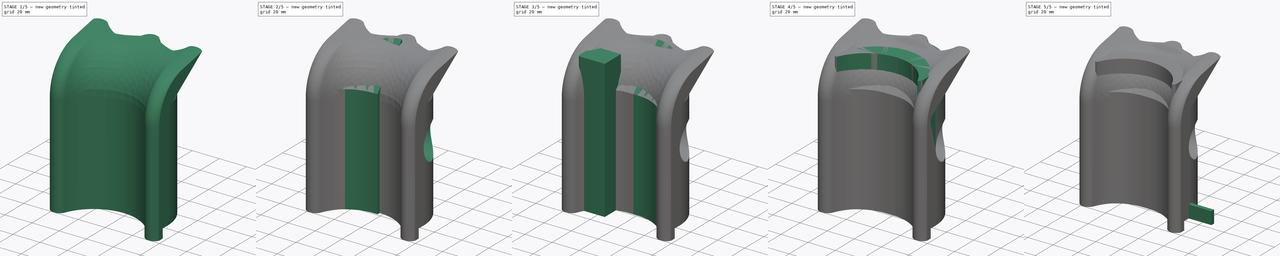
[diagram: build sequence overview — one tinted view per stage of 5, left to right]
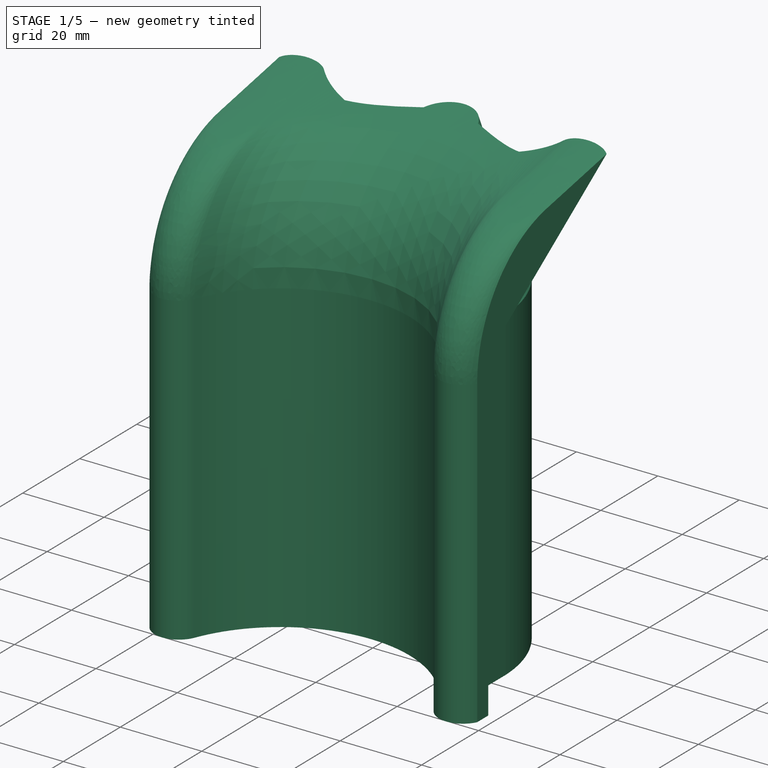
[diagram: stage 1 of 5 — iso view after this stage's code; geometry added in this stage tinted green]
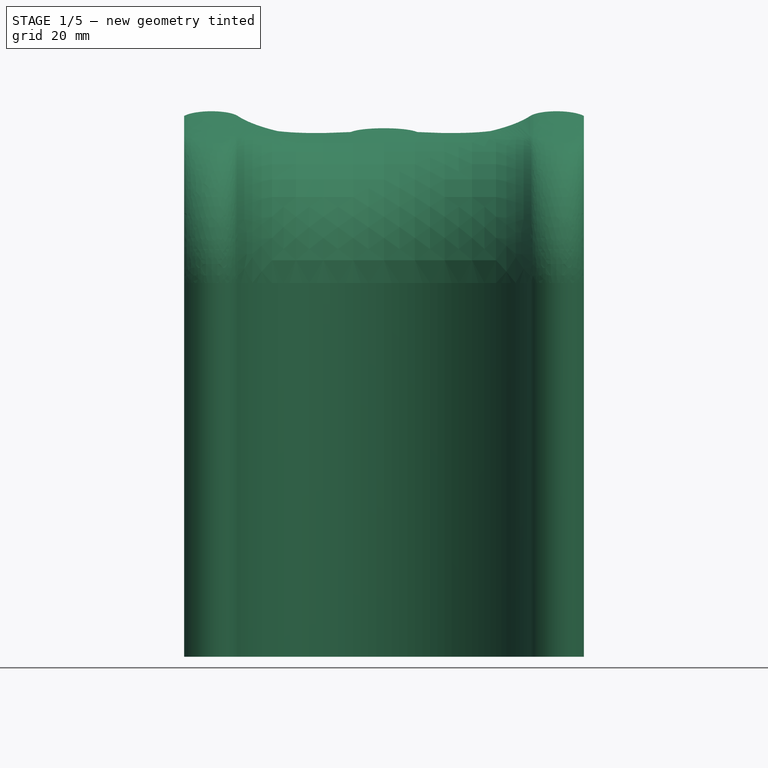
[diagram: stage 1 of 5 — front view after this stage's code; geometry added in this stage tinted green]
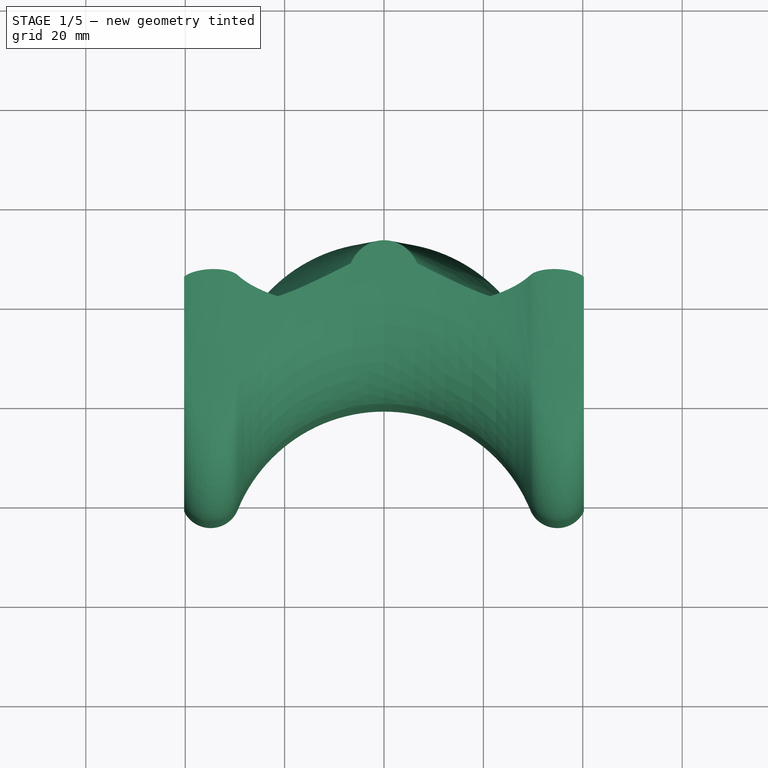
[diagram: stage 1 of 5 — top view after this stage's code; geometry added in this stage tinted green]
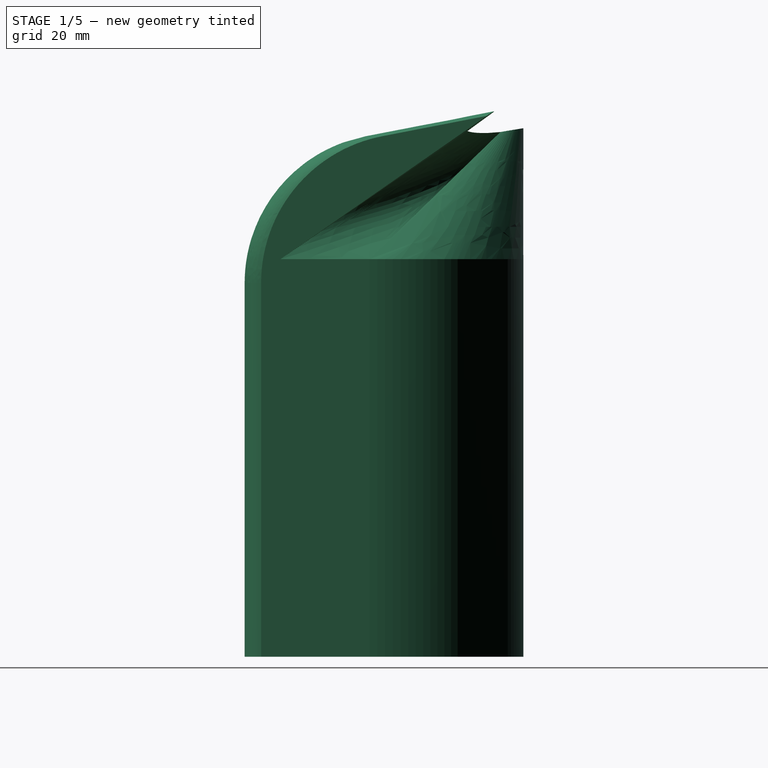
[diagram: stage 1 of 5 — right view after this stage's code; geometry added in this stage tinted green]
FCSTD DOCUMENT  (FreeCAD 0.19R)
Label: invert_table_stuff
License: All rights reserved
LicenseURL: http://en.wikipedia.org/wiki/All_rights_reserved
objects: Sketcher::SketchObject×11, PartDesign::Body×5, Part::FeaturePython×4, Part::Cylinder×3, Part::MultiFuse×3, Part::Plane×3, Part::Cut×3, App::Part×3, Part::Box×2, Part::Feature×2, Part::Mirroring×2, PartDesign::Pad×2, Part::Compound×2, Part::Fillet×1, App::DocumentObjectGroup×1, Part::Part2DObjectPython×1, Part::Loft×1, Part::Refine×1, PartDesign::AdditivePipe×1, PartDesign::AdditiveLoft×1, +1 more types
note: 53 computed .brp shape members not serialized (recipe doc carries the construction recipe); baked Part::Feature solids carry a one-line shape summary decoded from their .brp

FEATURE [Part::Refine] Cut003001  label="invert table foot bed cut001"
  Source = -> Cut003
FEATURE [Part::Feature] Cut003001001  label="invert table foot bed cut002"
  shape: bbox 74.7 x 53.95 x 106.9 mm, 54 faces, 4 solids (baked)
FEATURE [Sketcher::SketchObject] Sketch009
  FullyConstrained = false
  MapMode = 5
  Support = -> [XY_Plane006]
  sketch-geometry (6):
    g0: ArcOfCircle CenterX=0 CenterY=-32.4132 CenterZ=0 NormalX=0 NormalY=0 NormalZ=1 AngleXU=0 Radius=31.7684 StartAngle=0.387599 EndAngle=2.75399
    g1: ArcOfCircle CenterX=-34.8946 CenterY=-18.1674 CenterZ=0 NormalX=0 NormalY=0 NormalZ=1 AngleXU=0 Radius=5.92214 StartAngle=3.59764 EndAngle=5.89559
    g2: ArcOfCircle CenterX=34.8946 CenterY=-18.1674 CenterZ=0 NormalX=0 NormalY=0 NormalZ=1 AngleXU=0 Radius=5.92214 StartAngle=3.52919 EndAngle=5.82714
    g3: LineSegment StartX=-40.2115 StartY=-20.7756 StartZ=0 EndX=-40.2115 EndY=33.2275 EndZ=0
    g4: LineSegment StartX=40.2115 StartY=-20.7756 StartZ=0 EndX=40.2115 EndY=33.2275 EndZ=0
    g5: LineSegment StartX=40.2115 StartY=33.2275 StartZ=0 EndX=-40.2115 EndY=33.2275 EndZ=0
  constraints (12):
    c: PointOnObject(g0,g-2)
    c: DistanceY(g0,g0) = 0
    c: Tangent(g1,g0) = 1.5708
    c: Tangent(g2,g0) = 1.5708
    c: Coincident(g3,g1)
    c: Vertical(g3)
    c: Coincident(g4,g2)
    c: Vertical(g4)
    c: Coincident(g5,g4)
    c: Coincident(g5,g3)
    c: Horizontal(g5)
    c: Symmetric(g1,g2,g-2)
FEATURE [Sketcher::SketchObject] Sketch010
  ExternalGeometry = -> [Sketch009]
  FullyConstrained = false
  MapMode = 5
  Placement = pos=(0,0,0) rot=(0.57735,0.57735,0.57735;2.0944rad)
  Support = -> [YZ_Plane005,YZ_Plane006]
  sketch-geometry (4):
    g0: LineSegment StartX=-20.4058 StartY=2.5e-15 StartZ=0 EndX=-20.4058 EndY=75.1995 EndZ=0
    g1: LineSegment StartX=3.93831 StartY=104.736 StartZ=0 EndX=31 EndY=110 EndZ=0
    g2: ArcOfCircle CenterX=9.68399 CenterY=75.1995 CenterZ=0 NormalX=0 NormalY=0 NormalZ=1 AngleXU=0 Radius=30.0898 StartAngle=1.76293 EndAngle=3.14159
    g3: GeomPoint X=-20.4058 Y=100 Z=0
  constraints (9):
    c: DistanceY(g3,g1) = 10
    c: DistanceY(g0,g3) = 100
    c: PointOnObject(g3,g0)
    c: PointOnObject(g3,g1)
    c: Tangent(g0,g2) = 1.5708
    c: Tangent(g1,g2) = 1.5708
    c: Vertical(g0)
    c: Coincident(g0,g-3)
    c: DistanceX(g-1,g1) = 31
FEATURE [Sketcher::SketchObject] Sketch011
  FullyConstrained = false
  MapMode = 5
  Support = -> [XY_Plane007]
  sketch-geometry (8):
    g0: ArcOfCircle CenterX=0 CenterY=0 CenterZ=0 NormalX=0 NormalY=0 NormalZ=1 AngleXU=0 Radius=32 StartAngle=0.0312551 EndAngle=3.11034
    g1: LineSegment StartX=-31.9844 StartY=1 StartZ=0 EndX=-31.9844 EndY=-16.894 EndZ=0
    g2: LineSegment StartX=31.9844 StartY=1 StartZ=0 EndX=31.9844 EndY=-16.894 EndZ=0
    g3: LineSegment StartX=-31.9844 StartY=-16.894 StartZ=0 EndX=-44.5187 EndY=-16.894 EndZ=0
    g4: LineSegment StartX=-44.5187 StartY=-16.894 StartZ=0 EndX=-44.5187 EndY=-34.0727 EndZ=0
    g5: LineSegment StartX=-44.5187 StartY=-34.0727 StartZ=0 EndX=44.5187 EndY=-34.0727 EndZ=0
    g6: LineSegment StartX=44.5187 StartY=-34.0727 StartZ=0 EndX=44.5187 EndY=-16.894 EndZ=0
    g7: LineSegment StartX=31.9844 StartY=-16.894 StartZ=0 EndX=44.5187 EndY=-16.894 EndZ=0
  constraints (21):
    c: DistanceY(g0,g0) = 0
    c: Radius(g0) = 32
    c: DistanceY(g-1,g0) = 1
    c: Coincident(g0,g-1)
    c: Coincident(g1,g0)
    c: Vertical(g1)
    c: Coincident(g2,g0)
    c: Vertical(g2)
    c: Equal(g2,g1)
    c: Coincident(g3,g1)
    c: Horizontal(g3)
    c: Coincident(g4,g3)
    c: Vertical(g4)
    c: Coincident(g5,g4)
    c: Horizontal(g5)
    c: Coincident(g6,g5)
    c: Vertical(g6)
    c: Coincident(g7,g2)
    c: Coincident(g7,g6)
    c: Horizontal(g7)
    c: Equal(g7,g3)
FEATURE [PartDesign::Pad] Pad001
  Direction = (1,1,1)
  Length = 80
  Length2 = 100
  Profile = -> Sketch011
  Type = 0
FEATURE [PartDesign::Body] Body003
  Group = -> [Sketch011,Pad001]
  Origin = -> Origin007
  Tip = -> Pad001
FEATURE [PartDesign::AdditivePipe] AdditivePipe
  AuxilleryCurvelinear = true
  AuxillerySpineTangent = false
  Binormal = (0,0,0)
  Mode = 1
  Profile = -> Sketch009
  Spine = -> Sketch010
  SpineTangent = false
  Transformation = 0
  Transition = 0
FEATURE [PartDesign::Body] Body002
  Group = -> [Sketch009,Sketch010,AdditivePipe]
  Origin = -> Origin006
  Tip = -> AdditivePipe
FEATURE [Part::Plane] Plane002
  AttacherType = Attacher::AttachEngine3D
  Length = 100
  Placement = pos=(-50,-50,80) rot=(0,0,1;0rad)
  Width = 100
  expr: .Placement.Base.y = -Width / 2
  expr: .Placement.Base.x = -Length / 2
FEATURE [Sketcher::SketchObject] Sketch013
  AttachmentOffset = pos=(0,0,80) rot=(0,0,1;0rad)
  FullyConstrained = false
  MapMode = 5
  Placement = pos=(0,0,80) rot=(0,0,1;0rad)
  Support = -> [XY_Plane007]
  sketch-geometry (8):
    g0: ArcOfCircle CenterX=0 CenterY=0 CenterZ=0 NormalX=0 NormalY=0 NormalZ=1 AngleXU=0 Radius=32 StartAngle=0.0312551 EndAngle=3.11034
    g1: LineSegment StartX=-31.9844 StartY=1 StartZ=0 EndX=-31.9844 EndY=-16.894 EndZ=0
    g2: LineSegment StartX=31.9844 StartY=1 StartZ=0 EndX=31.9844 EndY=-16.894 EndZ=0
    g3: LineSegment StartX=-31.9844 StartY=-16.894 StartZ=0 EndX=-44.5187 EndY=-16.894 EndZ=0
    g4: LineSegment StartX=-44.5187 StartY=-16.894 StartZ=0 EndX=-44.5187 EndY=-34.0727 EndZ=0
    g5: LineSegment StartX=-44.5187 StartY=-34.0727 StartZ=0 EndX=44.5187 EndY=-34.0727 EndZ=0
    g6: LineSegment StartX=44.5187 StartY=-34.0727 StartZ=0 EndX=44.5187 EndY=-16.894 EndZ=0
    g7: LineSegment StartX=31.9844 StartY=-16.894 StartZ=0 EndX=44.5187 EndY=-16.894 EndZ=0
  constraints (21):
    c: DistanceY(g0,g0) = 0
    c: Radius(g0) = 32
    c: DistanceY(g-1,g0) = 1
    c: Coincident(g0,g-1)
    c: Coincident(g1,g0)
    c: Vertical(g1)
    c: Coincident(g2,g0)
    c: Vertical(g2)
    c: Equal(g2,g1)
    c: Coincident(g3,g1)
    c: Horizontal(g3)
    c: Coincident(g4,g3)
    c: Vertical(g4)
    c: Coincident(g5,g4)
    c: Horizontal(g5)
    c: Coincident(g6,g5)
    c: Vertical(g6)
    c: Coincident(g7,g2)
    c: Coincident(g7,g6)
    c: Horizontal(g7)
    c: Equal(g7,g3)
FEATURE [Sketcher::SketchObject] Sketch014
  AttachmentOffset = pos=(0,0,110) rot=(0,0,1;0rad)
  FullyConstrained = false
  MapMode = 5
  Placement = pos=(0,0,110) rot=(0,0,1;0rad)
  Support = -> [XY_Plane007]
  sketch-geometry (8):
    g0: ArcOfCircle CenterX=0 CenterY=0 CenterZ=0 NormalX=0 NormalY=0 NormalZ=1 AngleXU=0 Radius=32 StartAngle=1.4984 EndAngle=1.64319
    g1: LineSegment StartX=-2.31458 StartY=31.9162 StartZ=0 EndX=-19.671 EndY=26.9162 EndZ=0
    g2: LineSegment StartX=2.31458 StartY=31.9162 StartZ=0 EndX=19.671 EndY=26.9162 EndZ=0
    g3: LineSegment StartX=-19.671 StartY=26.9162 StartZ=0 EndX=-40.2549 EndY=26.2924 EndZ=0
    g4: LineSegment StartX=-40.2549 StartY=26.2924 StartZ=0 EndX=-41.04 EndY=-7.91569 EndZ=0
    g5: LineSegment StartX=-41.04 StartY=-7.91569 StartZ=0 EndX=41.04 EndY=-7.91569 EndZ=0
    g6: LineSegment StartX=41.04 StartY=-7.91569 StartZ=0 EndX=40.2549 EndY=26.2924 EndZ=0
    g7: LineSegment StartX=19.671 StartY=26.9162 StartZ=0 EndX=40.2549 EndY=26.2924 EndZ=0
  constraints (16):
    c: Radius(g0) = 32
    c: Coincident(g0,g-1)
    c: Coincident(g1,g0)
    c: Coincident(g2,g0)
    c: Equal(g2,g1)
    c: Coincident(g3,g1)
    c: Coincident(g4,g3)
    c: Coincident(g5,g4)
    c: Coincident(g6,g5)
    c: Coincident(g7,g2)
    c: Coincident(g7,g6)
    c: DistanceY(g1,g1) = 5
    c: DistanceX(g4,g-1) = 41.04
    c: Symmetric(g5,g4,g-2)
    c: Symmetric(g3,g6,g-2)
    c: Symmetric(g2,g1,g-2)
FEATURE [PartDesign::AdditiveLoft] AdditiveLoft
  Closed = false
  Profile = -> Sketch013
  Ruled = false
  Sections = -> [Sketch014]
FEATURE [PartDesign::Body] Body004
  Group = -> [Sketch013,Sketch014,AdditiveLoft]
  Origin = -> Origin008
  Tip = -> AdditiveLoft
FEATURE [App::Part] Part002
  Group = -> [Body002,Body003,Body004]
  Origin = -> Origin005
FEATURE [Part::MultiFuse] Fusion004
  Shapes = -> [Body004,Body003]
FEATURE [Part::MultiCommon] Common
  Shapes = -> [Body002,Fusion004]
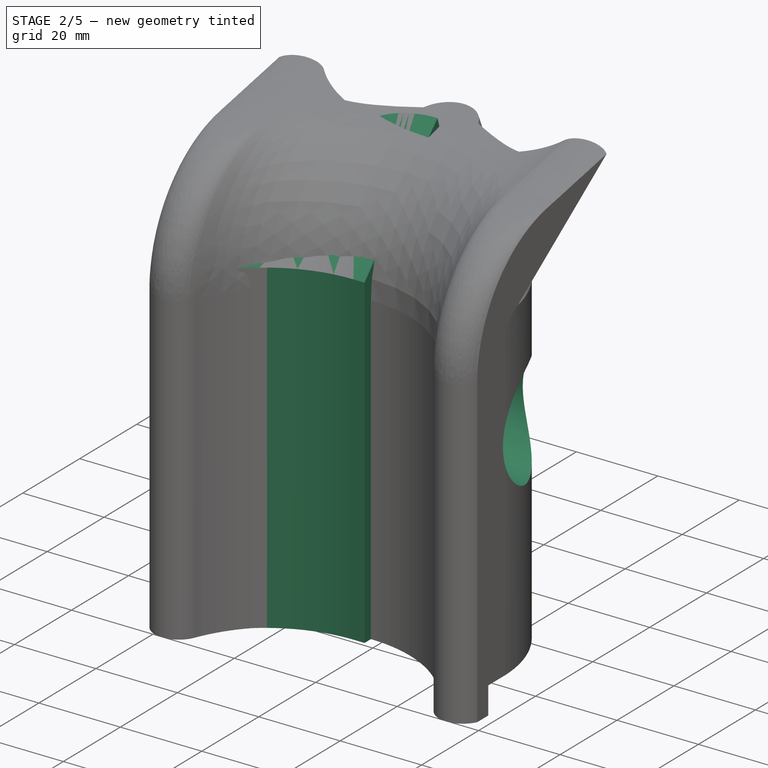
[diagram: stage 2 of 5 — iso view after this stage's code; geometry added in this stage tinted green]
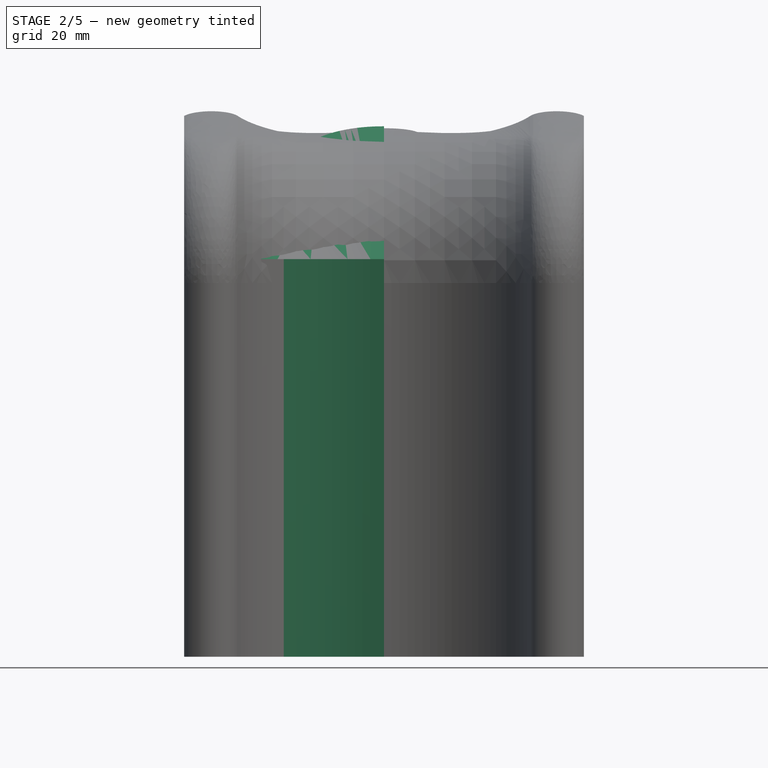
[diagram: stage 2 of 5 — front view after this stage's code; geometry added in this stage tinted green]
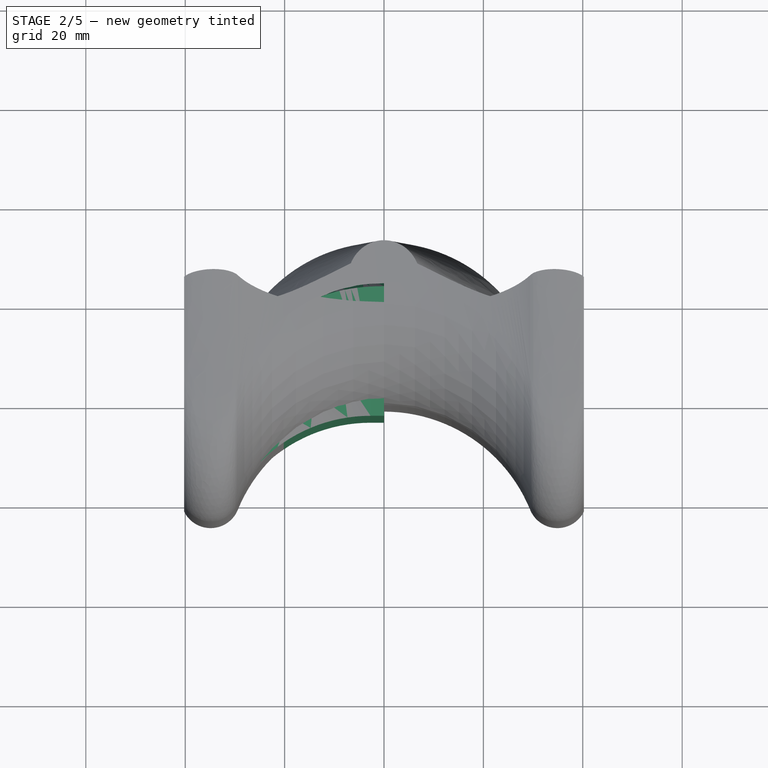
[diagram: stage 2 of 5 — top view after this stage's code; geometry added in this stage tinted green]
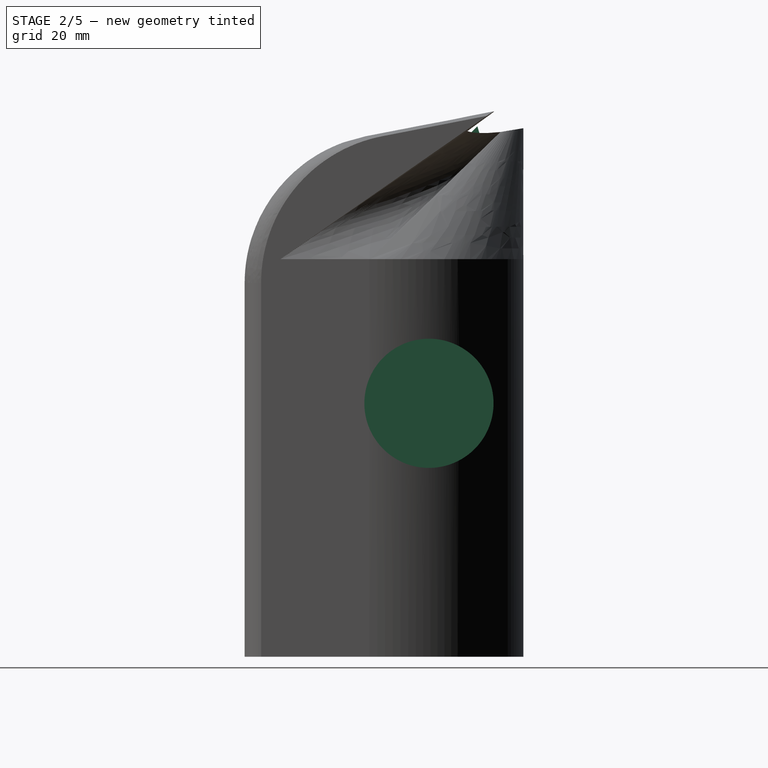
[diagram: stage 2 of 5 — right view after this stage's code; geometry added in this stage tinted green]
FEATURE [Part::Cylinder] Cylinder  label="outer cylinder"
  Angle = 180
  AttacherType = Attacher::AttachEngine3D
  Height = 102
  Radius = 32
FEATURE [Part::Cylinder] Cylinder002  label="hole cylinder"
  Angle = 360
  AttacherType = Attacher::AttachEngine3D
  Height = 64
  Placement = pos=(-32,13,51) rot=(0,1,0;1.5708rad)
  Radius = 13
  expr: Height = <<outer cylinder>>.Radius * 2
  expr: .Placement.Base.x = -Height / 2
  expr: .Placement.Base.z = <<outer cylinder>>.Height / 2
FEATURE [App::DocumentObjectGroup] GrExplode_Slice  label="Exploded Slice"
  Group = -> [Slice_child0,Slice_child1,Slice_child2]
FEATURE [App::Part] Part001  label="invert table bed part"
  Group = -> [Cut]
  Origin = -> Origin002
FEATURE [Sketcher::SketchObject] Sketch003  label="middle sketch"
  AttachmentOffset = pos=(0,0,80) rot=(0,0,1;0rad)
  FullyConstrained = false
  MapMode = 5
  Placement = pos=(0,0,80) rot=(0,0,1;0rad)
  Support = -> [XY_Plane003]
  sketch-geometry (44):
    g0: LineSegment StartX=0 StartY=32 StartZ=0 EndX=0 EndY=0 EndZ=0
    g1-g22: Circle x22 (B-spline internal-alignment scaffolding for g23; pole/knot coordinates omitted)
    g23: BSplineCurve PolesCount=22 KnotsCount=20 Degree=3 IsPeriodic=0
    g24-g43: GeomPoint x20 (B-spline internal-alignment scaffolding for g23; pole/knot coordinates omitted)
  constraints (9):
    c: PointOnObject(g0,g-2)
    c: DistanceY(g-1,g0) = 32
    c: Coincident(g23,g0)
    c: Weight(g1) = 1
    c: Equal(g1, g2-g22) x21
    c: Coincident(g23,g0)
    c: InternalAlignment(g1-g22 -> g23) x22
    c: InternalAlignment(g24-g43 -> g23) x20
    c: Coincident(g0,g-1)
FEATURE [Sketcher::SketchObject] Sketch005  label="central vertical sketch"
  ExternalGeometry = -> [Sketch003,Sketch]
  FullyConstrained = false
  MapMode = 5
  Placement = pos=(0,0,0) rot=(0.57735,0.57735,0.57735;2.0944rad)
  Support = -> [YZ_Plane003]
  sketch-geometry (4):
    g0: LineSegment StartX=32 StartY=109.073 StartZ=0 EndX=32 EndY=80 EndZ=0
    g1: LineSegment StartX=0 StartY=0 StartZ=0 EndX=0.127866 EndY=80.0002 EndZ=0
    g2: LineSegment StartX=32 StartY=80 StartZ=0 EndX=32 EndY=1.42e-14 EndZ=0
    g3: ArcOfCircle CenterX=26.9326 CenterY=82.6215 CenterZ=0 NormalX=0 NormalY=0 NormalZ=1 AngleXU=0 Radius=26.9326 StartAngle=1.38152 EndAngle=3.23907
  constraints (8):
    c: Coincident(g0,g-4)
    c: Vertical(g0)
    c: Coincident(g1,g-1)
    c: Coincident(g2,g0)
    c: Coincident(g2,g-6)
    c: Coincident(g3,g0)
    c: Tangent(g-2,g3)
    c: Coincident(g3,g1)
FEATURE [Sketcher::SketchObject] Sketch006  label="top sketch"
  AttachmentOffset = pos=(0,0,100) rot=(0,0,1;0rad)
  FullyConstrained = false
  MapMode = 5
  Placement = pos=(0,0,100) rot=(0,0,1;0rad)
  Support = -> [XY_Plane003]
  sketch-geometry (37):
    g0-g18: Circle x19 (B-spline internal-alignment scaffolding for g19; pole/knot coordinates omitted)
    g19: BSplineCurve PolesCount=19 KnotsCount=17 Degree=3 IsPeriodic=0
    g20-g36: GeomPoint x17 (B-spline internal-alignment scaffolding for g19; pole/knot coordinates omitted)
  constraints (6):
    c: PointOnObject(g19,g-2)
    c: DistanceY(g-1,g19) = 32
    c: Weight(g0) = 1
    c: Equal(g0, g1-g18) x18
    c: InternalAlignment(g0-g18 -> g19) x19
    c: InternalAlignment(g20-g36 -> g19) x17
FEATURE [PartDesign::Body] Body001
  Group = -> [Sketch003,Sketch,Sketch005,Sketch006]
  Origin = -> Origin003
FEATURE [Sketcher::SketchObject] Sketch007
  AttachmentOffset = pos=(0,0,80) rot=(0,0,1;0rad)
  FullyConstrained = false
  MapMode = 5
  Placement = pos=(0,0,80) rot=(0,0,1;0rad)
  Support = -> [XY_Plane004]
  sketch-geometry (16):
    g0: LineSegment StartX=-31.9837 StartY=-1.21841 StartZ=0 EndX=-31.9837 EndY=-11.5609 EndZ=0
    g1: LineSegment StartX=-33.5705 StartY=-15.3241 StartZ=0 EndX=-36.5881 EndY=-18.266 EndZ=0
    g2: LineSegment StartX=-36.5585 StartY=-21.4135 StartZ=0 EndX=-35.2268 EndY=-22.6639 EndZ=0
    g3: LineSegment StartX=-32.8277 StartY=-22.4539 StartZ=0 EndX=-28.7702 EndY=-17.0304 EndZ=0
    g4: ArcOfCircle CenterX=-37.2393 CenterY=-11.5609 CenterZ=0 NormalX=0 NormalY=0 NormalZ=1 AngleXU=0 Radius=5.25565 StartAngle=5.48508 EndAngle=6.28319
    g5: GeomPoint X=-31.9837 Y=-13.7771 Z=0
    g6: ArcOfCircle CenterX=-35.0676 CenterY=-19.8256 CenterZ=0 NormalX=0 NormalY=0 NormalZ=1 AngleXU=0 Radius=2.17813 StartAngle=2.34349 EndAngle=3.95849
    g7: GeomPoint X=-38.2182 Y=-19.8552 Z=0
    g8: ArcOfCircle CenterX=-34.1211 CenterY=-21.4862 CenterZ=0 NormalX=0 NormalY=0 NormalZ=1 AngleXU=0 Radius=1.61536 StartAngle=3.95849 EndAngle=5.64089
    g9: GeomPoint X=-33.9098 Y=-23.9004 Z=0
    g10: GeomPoint X=0 Y=30.7653 Z=0
    g11: ArcOfCircle CenterX=0 CenterY=-1.21841 CenterZ=0 NormalX=0 NormalY=0 NormalZ=1 AngleXU=0 Radius=31.9837 StartAngle=1.5708 EndAngle=3.14159
    g12: GeomPoint X=0 Y=-2.88124 Z=0
    g13: LineSegment StartX=0 StartY=-2.88124 StartZ=0 EndX=-2.72336 EndY=-2.88124 EndZ=0
    g14: ArcOfCircle CenterX=-2.72336 CenterY=-33.9304 CenterZ=0 NormalX=0 NormalY=0 NormalZ=1 AngleXU=0 Radius=31.0492 StartAngle=1.5708 EndAngle=2.56604
    g15: LineSegment StartX=0 StartY=30.7653 StartZ=0 EndX=0 EndY=-2.88124 EndZ=0
  constraints (24):
    c: Vertical(g0)
    c: PointOnObject(g5,g1)
    c: PointOnObject(g5,g0)
    c: Tangent(g1,g4) = 1.5708
    c: Tangent(g0,g4) = 1.5708
    c: PointOnObject(g7,g1)
    c: PointOnObject(g7,g2)
    c: Tangent(g1,g6) = -1.5708
    c: Tangent(g2,g6) = -1.5708
    c: PointOnObject(g9,g2)
    c: PointOnObject(g9,g3)
    c: Tangent(g2,g8) = -1.5708
    c: Tangent(g3,g8) = -1.5708
    c: PointOnObject(g10,g-2)
    c: Coincident(g11,g10)
    c: Tangent(g11,g0) = -1.5708
    c: PointOnObject(g12,g-2)
    c: Coincident(g13,g12)
    c: Horizontal(g13)
    c: Coincident(g14,g3)
    c: Tangent(g14,g13) = -1.5708
    c: Coincident(g15,g11)
    c: Coincident(g15,g13)
    c: PointOnObject(g11,g15)
FEATURE [PartDesign::Pad] Pad
  Direction = (1,1,1)
  Length = 80
  Length2 = 100
  Profile = -> Sketch007
  Reversed = true
  Type = 0
FEATURE [Sketcher::SketchObject] Sketch008
  AttachmentOffset = pos=(0,0,100) rot=(0,0,1;0rad)
  FullyConstrained = false
  MapMode = 5
  Placement = pos=(0,0,100) rot=(0,0,1;0rad)
  Support = -> [XY_Plane004]
  sketch-geometry (16):
    g0: LineSegment StartX=-32.2883 StartY=3.9e-15 StartZ=0 EndX=-32.2883 EndY=-11.464 EndZ=0
    g1: LineSegment StartX=-33.7747 StartY=-15.2101 StartZ=0 EndX=-36.6992 EndY=-18.315 EndZ=0
    g2: LineSegment StartX=-36.7064 StartY=-21.4783 StartZ=0 EndX=-35.3692 EndY=-22.911 EndZ=0
    g3: LineSegment StartX=-34.2868 StartY=-22.8437 StartZ=0 EndX=-29.6893 EndY=-16.4947 EndZ=0
    g4: ArcOfCircle CenterX=-37.7519 CenterY=-11.464 CenterZ=0 NormalX=0 NormalY=0 NormalZ=1 AngleXU=0 Radius=5.46362 StartAngle=5.5277 EndAngle=6.28319
    g5: GeomPoint X=-32.2883 Y=-13.6319 Z=0
    g6: ArcOfCircle CenterX=-35.0159 CenterY=-19.9005 CenterZ=0 NormalX=0 NormalY=0 NormalZ=1 AngleXU=0 Radius=2.31239 StartAngle=2.38611 EndAngle=3.89252
    g7: GeomPoint X=-38.1858 Y=-19.8933 Z=0
    g8: ArcOfCircle CenterX=-34.8557 CenterY=-22.4317 CenterZ=0 NormalX=0 NormalY=0 NormalZ=1 AngleXU=0 Radius=0.702381 StartAngle=3.89252 EndAngle=5.65644
    g9: GeomPoint X=-34.7872 Y=-23.5346 Z=0
    g10: GeomPoint X=1e-16 Y=31.7794 Z=0
    g11: ArcOfCircle CenterX=-0.504849 CenterY=0 CenterZ=0 NormalX=0 NormalY=0 NormalZ=1 AngleXU=0 Radius=31.7834 StartAngle=1.55491 EndAngle=3.14159
    g12: GeomPoint X=0 Y=-0.719869 Z=0
    g13: LineSegment StartX=0 StartY=-0.719869 StartZ=0 EndX=-2.20406 EndY=-0.719869 EndZ=0
    g14: ArcOfCircle CenterX=-2.20406 CenterY=-32.5517 CenterZ=0 NormalX=0 NormalY=0 NormalZ=1 AngleXU=0 Radius=31.8319 StartAngle=1.5708 EndAngle=2.61287
    g15: LineSegment StartX=1e-16 StartY=31.7794 StartZ=0 EndX=0 EndY=-0.719869 EndZ=0
  constraints (24):
    c: PointOnObject(g0,g-1)
    c: Vertical(g0)
    c: PointOnObject(g5,g1)
    c: PointOnObject(g5,g0)
    c: Tangent(g1,g4) = 1.5708
    c: Tangent(g0,g4) = 1.5708
    c: PointOnObject(g7,g1)
    c: PointOnObject(g7,g2)
    c: Tangent(g1,g6) = -1.5708
    c: Tangent(g2,g6) = -1.5708
    c: PointOnObject(g9,g2)
    c: PointOnObject(g9,g3)
    c: Tangent(g2,g8) = -1.5708
    c: Tangent(g3,g8) = -1.5708
    c: PointOnObject(g10,g-2)
    c: Coincident(g11,g10)
    c: Tangent(g11,g0) = -1.5708
    c: PointOnObject(g12,g-2)
    c: Coincident(g13,g12)
    c: Horizontal(g13)
    c: Coincident(g14,g3)
    c: Tangent(g14,g13) = -1.5708
    c: Coincident(g15,g11)
    c: Coincident(g15,g13)
FEATURE [PartDesign::Body] Body
  Group = -> [Sketch007,Pad,Sketch008]
  Origin = -> Origin004
  Tip = -> Pad
FEATURE [App::Part] Part  label="invert table foot bed part"
  Group = -> [Body001,Body]
  Origin = -> Origin
FEATURE [Part::Part2DObjectPython] Clone2D  label="Sketch008 (2D)"  # Draft 2D object (typed FeaturePython)
  Fuse = false
  Objects = -> [Sketch008]
  Placement = pos=(0,16,100) rot=(1,0,0;0.785398rad)
  Scale = (0.54,0.3,1)
FEATURE [Part::Loft] Loft
  Closed = false
  MaxDegree = 5
  Ruled = false
  Sections = -> [Sketch007,Clone2D]
  Solid = true
FEATURE [Part::Cut] Cut003001002  label="final smoothed"
  Base = -> Common
  Tool = -> Cylinder002
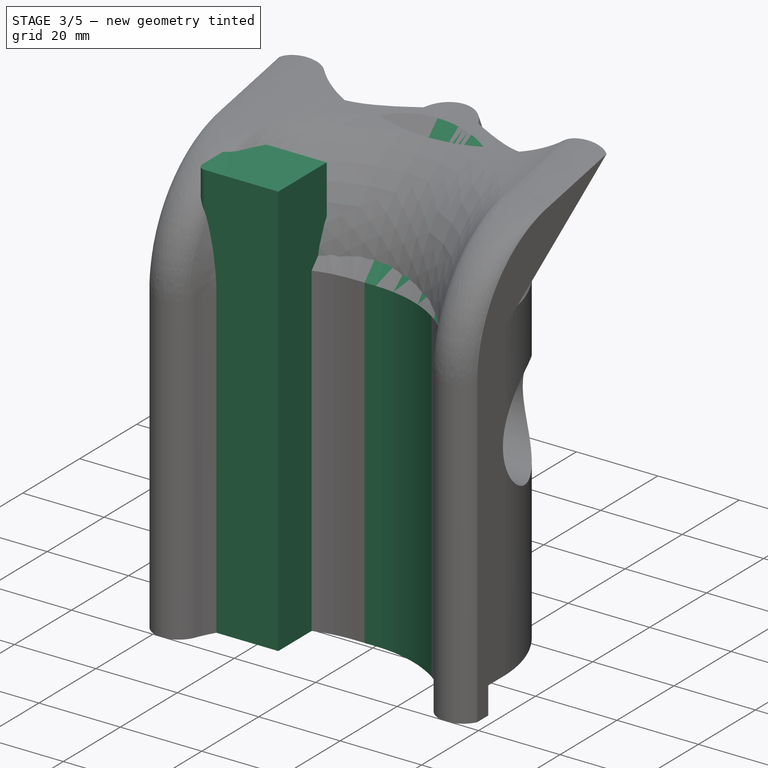
[diagram: stage 3 of 5 — iso view after this stage's code; geometry added in this stage tinted green]
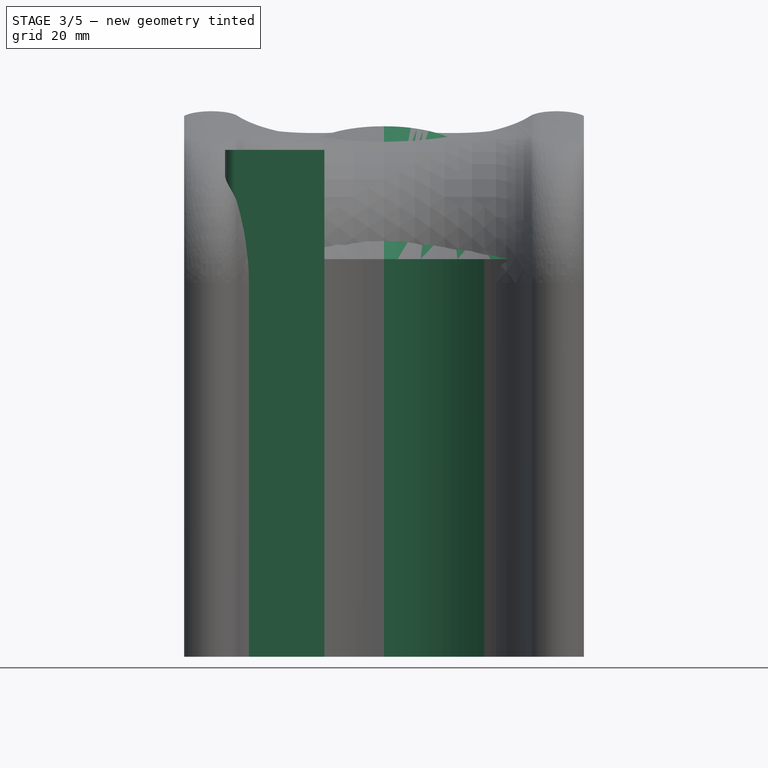
[diagram: stage 3 of 5 — front view after this stage's code; geometry added in this stage tinted green]
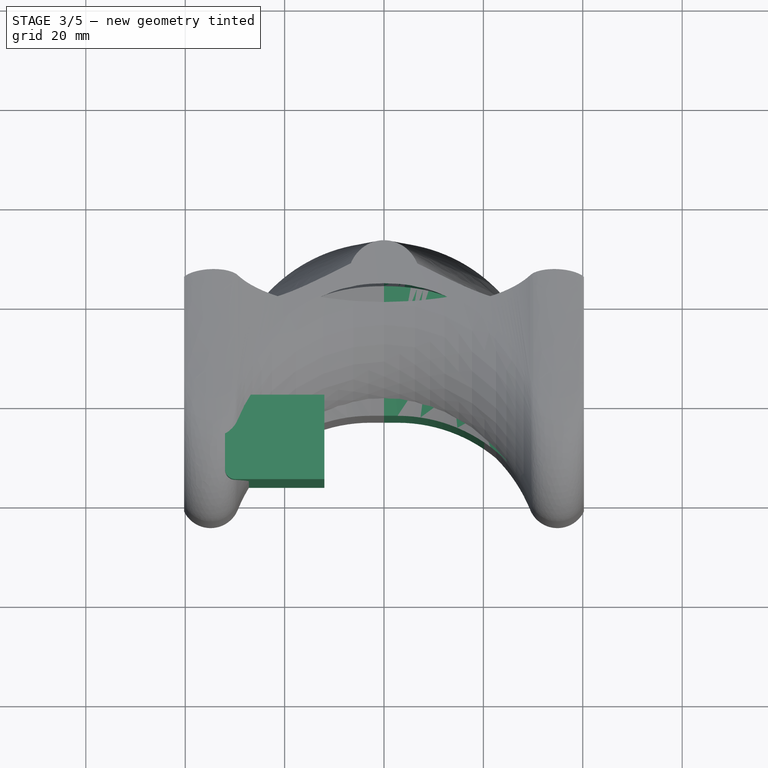
[diagram: stage 3 of 5 — top view after this stage's code; geometry added in this stage tinted green]
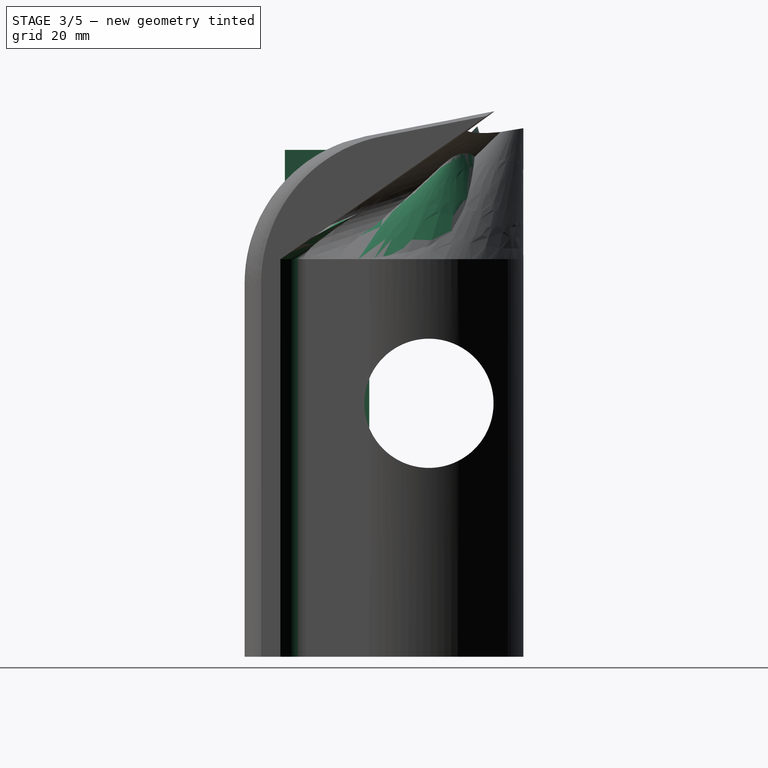
[diagram: stage 3 of 5 — right view after this stage's code; geometry added in this stage tinted green]
FEATURE [Part::Plane] Plane
  AttacherType = Attacher::AttachEngine3D
  Length = 100
  Placement = pos=(-50,-50,37) rot=(0,0,1;0rad)
  Width = 100
  expr: .Placement.Base.x = -Length / 2
  expr: .Placement.Base.y = -Width / 2
FEATURE [Part::Box] Box001  label="side cube"
  AttacherType = Attacher::AttachEngine3D
  Height = 102
  Length = 20
  Placement = pos=(-32,-16,0) rot=(0,0,1;0rad)
  Width = 17
  expr: Height = <<outer cylinder>>.Height
FEATURE [Part::Plane] Plane001
  AttacherType = Attacher::AttachEngine3D
  Length = 100
  Placement = pos=(-50,-50,65) rot=(0,0,1;0rad)
  Width = 100
  expr: .Placement.Base.y = -Width / 2
  expr: .Placement.Base.x = -Length / 2
FEATURE [Sketcher::SketchObject] Sketch  label="bottom sketch"
  FullyConstrained = false
  MapMode = 5
  Support = -> [XY_Plane003]
  sketch-geometry (44):
    g0: LineSegment StartX=0 StartY=32 StartZ=0 EndX=0 EndY=-0.121644 EndZ=0
    g1-g22: Circle x22 (B-spline internal-alignment scaffolding for g23; pole/knot coordinates omitted)
    g23: BSplineCurve PolesCount=22 KnotsCount=20 Degree=3 IsPeriodic=0
    g24-g43: GeomPoint x20 (B-spline internal-alignment scaffolding for g23; pole/knot coordinates omitted)
  constraints (9):
    c: PointOnObject(g0,g-2)
    c: Vertical(g0)
    c: DistanceY(g-1,g0) = 32
    c: Coincident(g23,g0)
    c: Weight(g1) = 1
    c: Equal(g1, g2-g22) x21
    c: Coincident(g23,g0)
    c: InternalAlignment(g1-g22 -> g23) x22
    c: InternalAlignment(g24-g43 -> g23) x20
FEATURE [Part::Feature] Cut002  label="invert table foot bed001"
  shape: bbox 68 x 40.03 x 102 mm, 11 faces (baked)
FEATURE [Part::Fillet] Fillet  label="side cube fillet"
  Base = -> Box001
  Edges = 1 edges r=2: [Edge1]
FEATURE [Part::Compound] Compound
  Links = -> [Pad,Loft]
FEATURE [Part::Mirroring] Part__Mirroring001  label="Compound (Mirror #2)"
  Base = (0,0,0)
  Normal = (1,0,0)
  Source = -> Compound
FEATURE [Part::Compound] Compound001
  Links = -> [Part__Mirroring001,Compound]
FEATURE [Part::Cut] Cut003  label="invert table foot bed cut"
  Base = -> Compound001
  Tool = -> Cylinder002
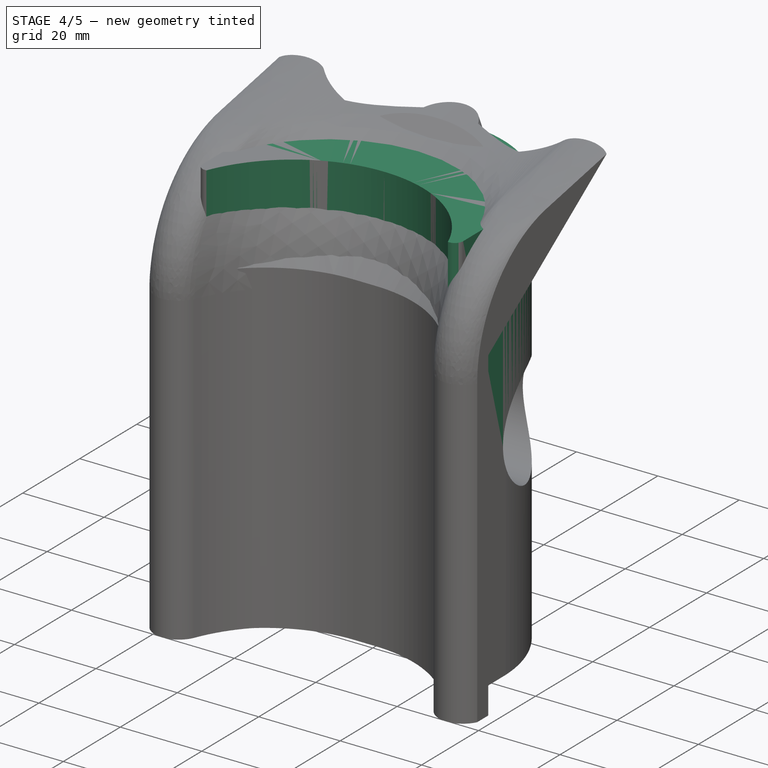
[diagram: stage 4 of 5 — iso view after this stage's code; geometry added in this stage tinted green]
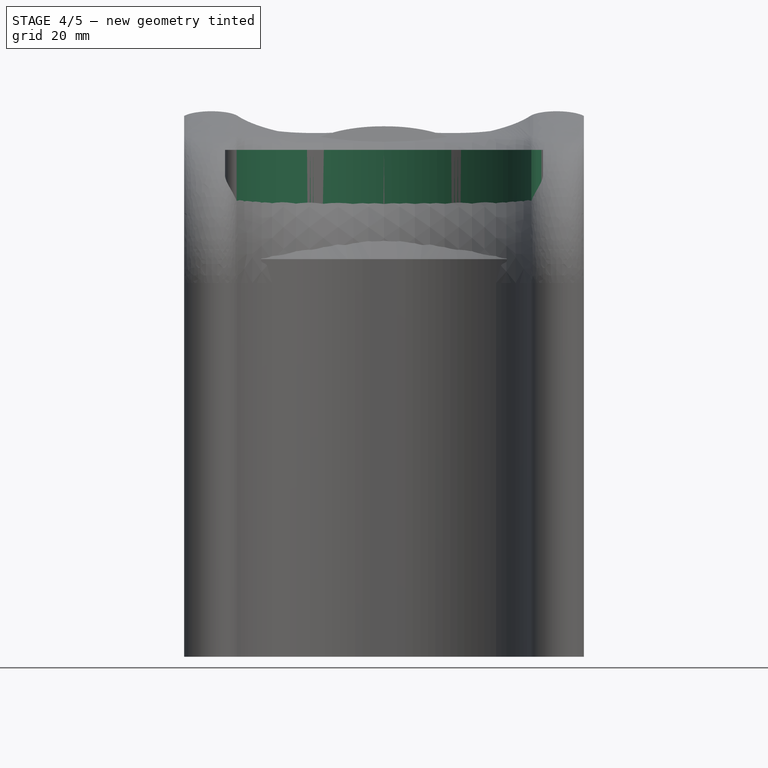
[diagram: stage 4 of 5 — front view after this stage's code; geometry added in this stage tinted green]
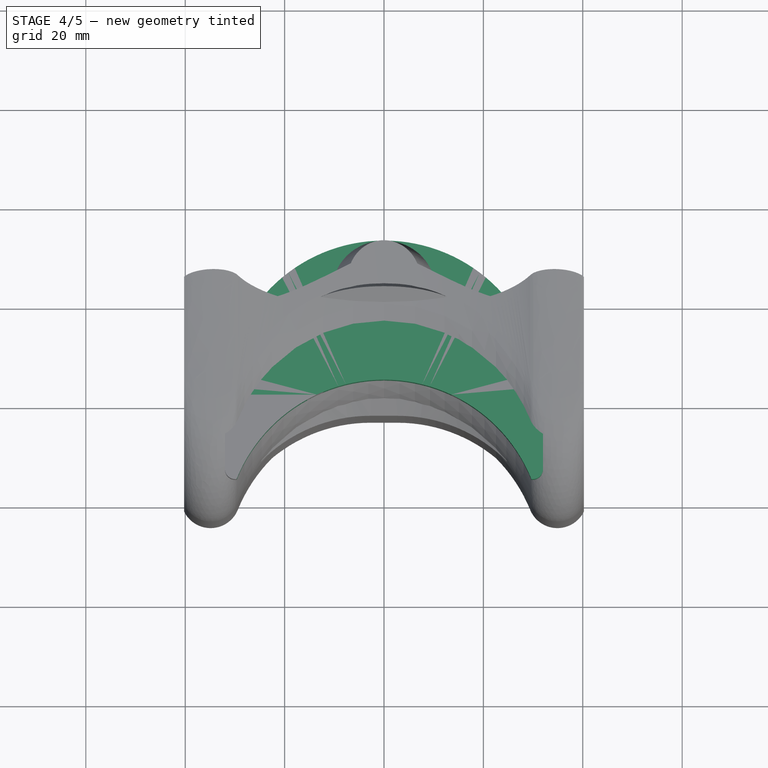
[diagram: stage 4 of 5 — top view after this stage's code; geometry added in this stage tinted green]
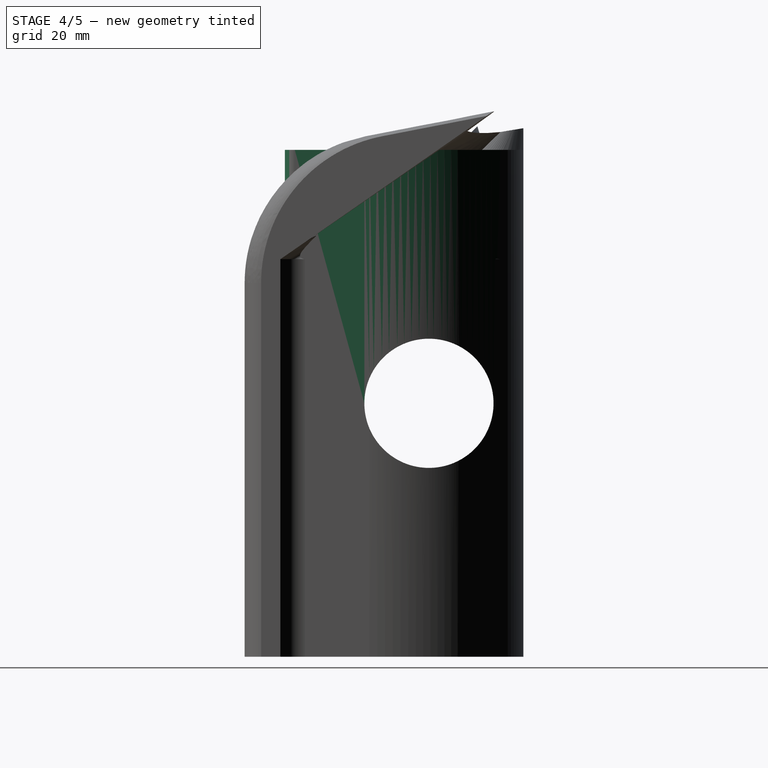
[diagram: stage 4 of 5 — right view after this stage's code; geometry added in this stage tinted green]
FEATURE [Part::Cylinder] Cylinder001  label="inner cylinder"
  Angle = 180
  AttacherType = Attacher::AttachEngine3D
  Height = 102
  Placement = pos=(0,-28,0) rot=(0,0,1;0rad)
  Radius = 32
FEATURE [Part::MultiFuse] Fusion  label="extract fusion"
  Shapes = -> [Cylinder001,Cylinder002]
FEATURE [Part::Mirroring] Part__Mirroring  label="side cube (Mirror #1)"
  Base = (0,0,0)
  Normal = (1,0,0)
  Source = -> Fillet
FEATURE [Part::MultiFuse] Fusion002  label="body fusion"
  Shapes = -> [Part__Mirroring,Cylinder,Fillet]
FEATURE [Part::Cut] Cut  label="invert table foot bed"
  Base = -> Fusion002
  Tool = -> Fusion
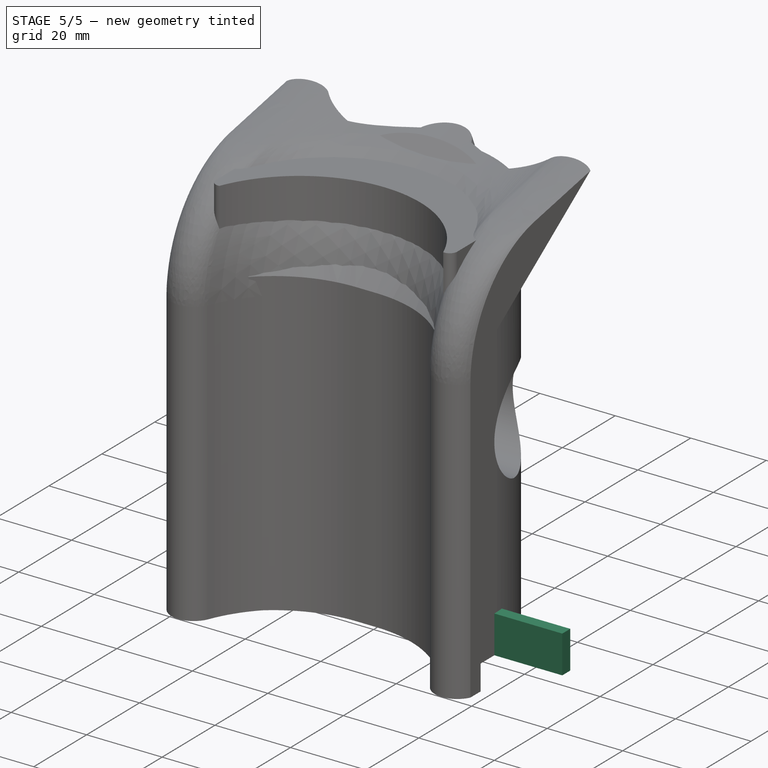
[diagram: stage 5 of 5 — iso view after this stage's code; geometry added in this stage tinted green]
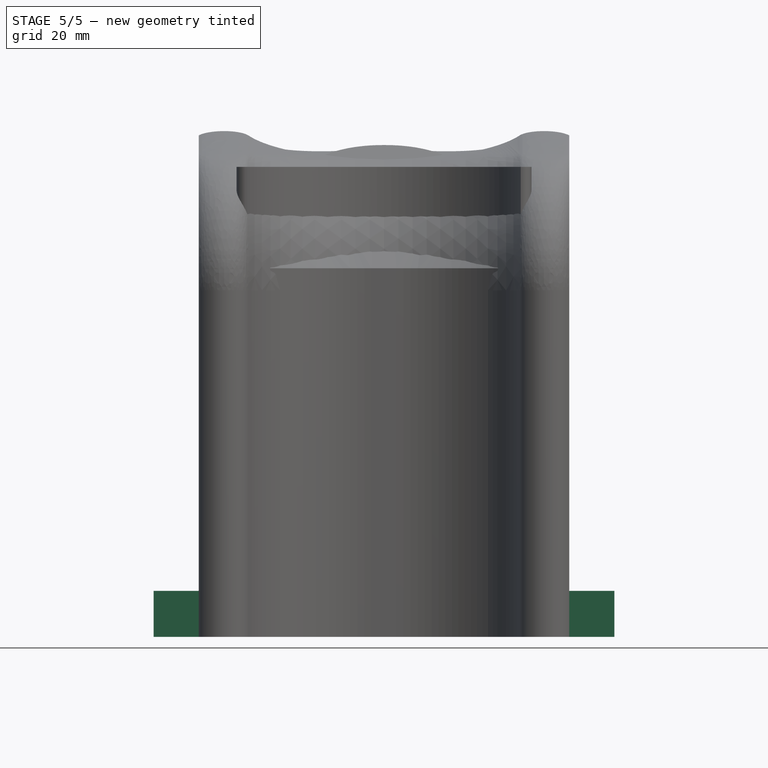
[diagram: stage 5 of 5 — front view after this stage's code; geometry added in this stage tinted green]
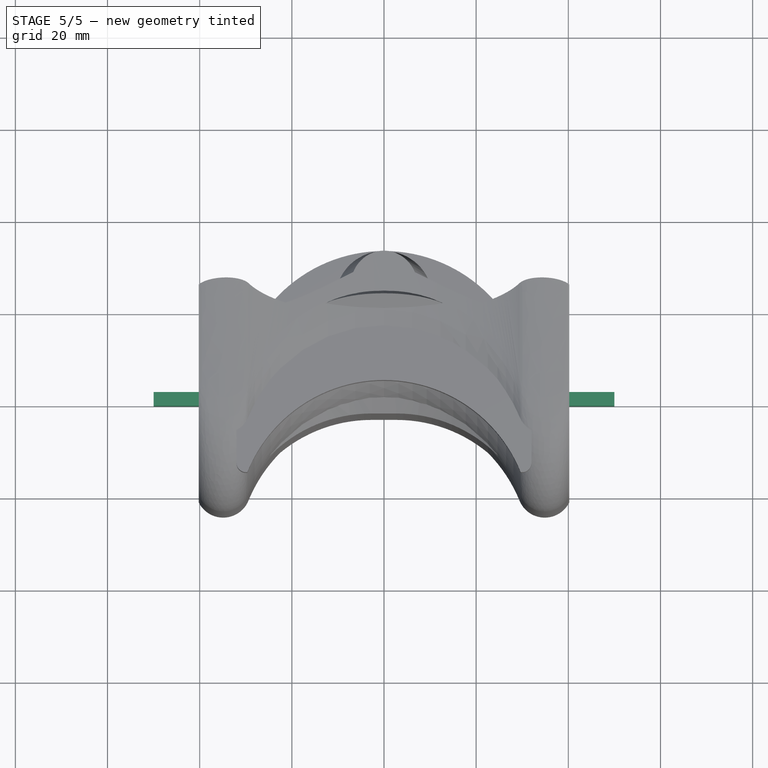
[diagram: stage 5 of 5 — top view after this stage's code; geometry added in this stage tinted green]
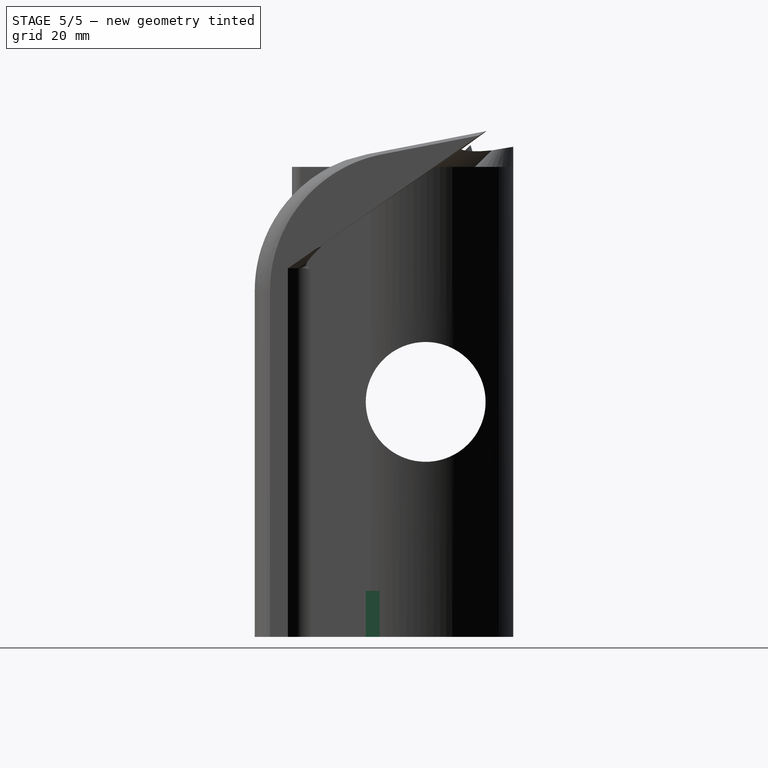
[diagram: stage 5 of 5 — right view after this stage's code; geometry added in this stage tinted green]
FEATURE [Part::Box] Box  label="measurement cube "
  AttacherType = Attacher::AttachEngine3D
  Height = 10
  Length = 100
  Placement = pos=(-50,0,0) rot=(0,0,1;0rad)
  Width = 3
  expr: .Placement.Base.x = -Length / 2
FEATURE [Part::FeaturePython] Slice  # WARN: FeaturePython — macro-defined, semantics opaque (R4)
  Base = -> Cut
  Mode = 1
  Tolerance = 0
  Tools = -> [Plane,Plane001]
FEATURE [Part::FeaturePython] Slice_child0  label="Slice.0"  # WARN: FeaturePython — macro-defined, semantics opaque (R4)
  Base = -> Slice
  FilterType = 1
  Invert = false
  OverrideMaxVal = 0
  WindowFrom = 80
  WindowTo = 100
  items = 0
FEATURE [Part::FeaturePython] Slice_child1  label="Slice.1"  # WARN: FeaturePython — macro-defined, semantics opaque (R4)
  Base = -> Slice
  FilterType = 1
  Invert = false
  OverrideMaxVal = 0
  WindowFrom = 80
  WindowTo = 100
  items = 1
FEATURE [Part::FeaturePython] Slice_child2  label="Slice.2"  # WARN: FeaturePython — macro-defined, semantics opaque (R4)
  Base = -> Slice
  FilterType = 1
  Invert = false
  OverrideMaxVal = 0
  WindowFrom = 80
  WindowTo = 100
  items = 2
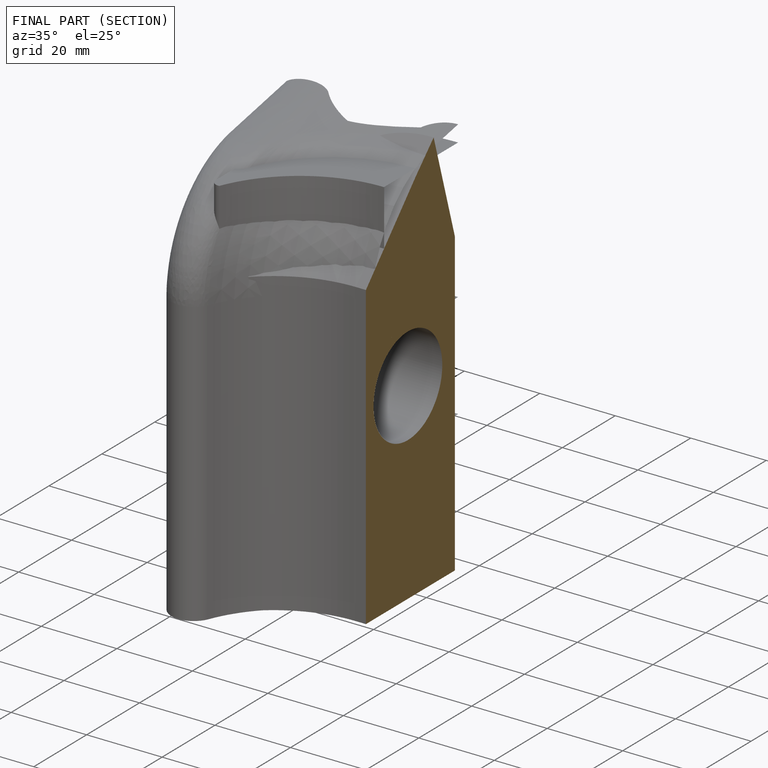
[diagram: finished part — half-section view (interior)]
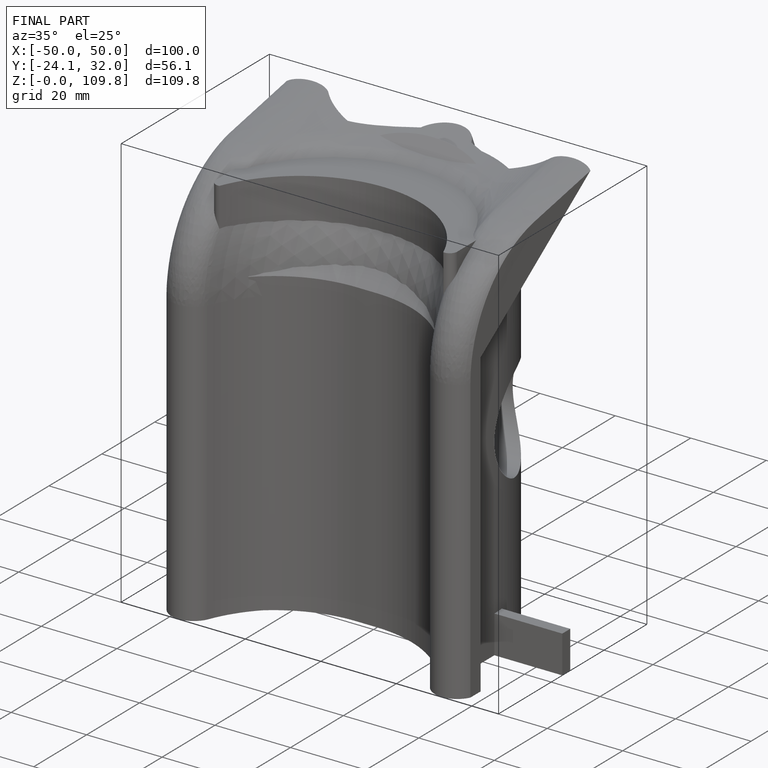
[diagram: finished part — iso view with bounding-box wireframe]
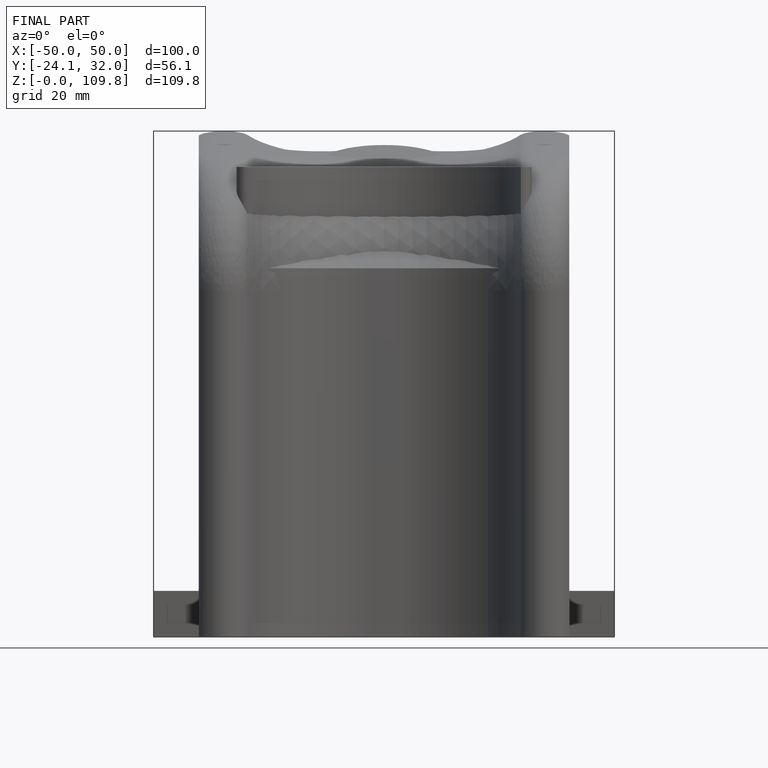
[diagram: finished part — front view with bounding-box wireframe]
